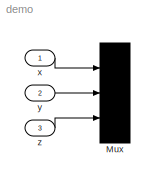
MODEL demo
KIND model
BLOCK [Mux] Mux
  Inputs = [np np np]
  Ports = [3, 1]
  SID = 9
BLOCK [Inport] x
  IconDisplay = Port number
  SID = 6
BLOCK [Inport] y
  IconDisplay = Port number
  Port = 2
  SID = 7
BLOCK [Inport] z
  IconDisplay = Port number
  Port = 3
  SID = 8
LINE x:1 -> Mux:1
LINE y:1 -> Mux:2
LINE z:1 -> Mux:3
